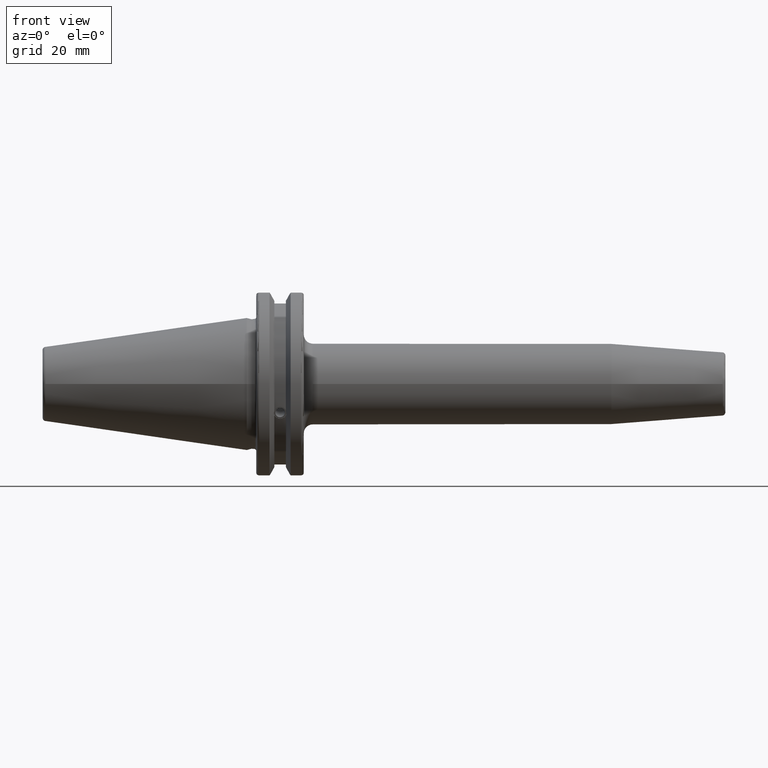
[diagram: clean part render]
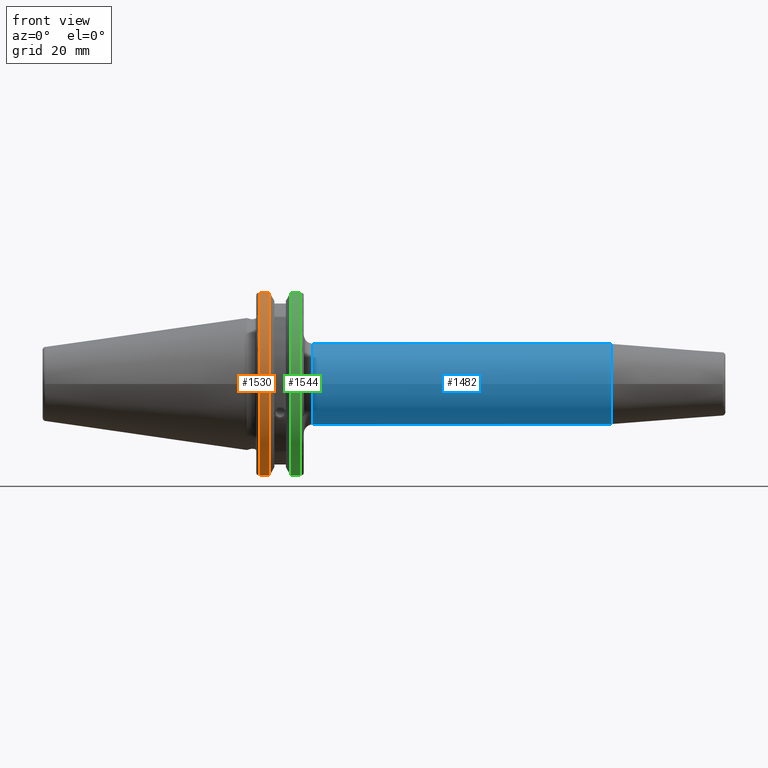
[diagram: same view with three faces highlighted in distinct colors, each labeled with its STEP entity id]
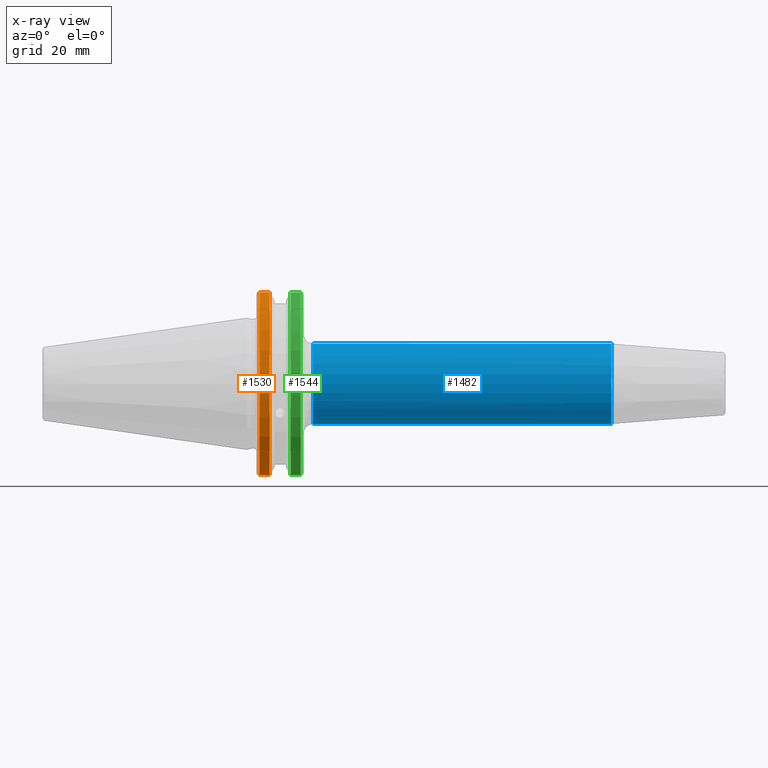
[diagram: x-ray of the same camera — body ghosted, the three highlighted faces saturated]
A machine part, front view with three faces highlighted in distinct colors.
The next image is the same camera in x-ray (body ghosted, the three faces saturated) — at least one of them is partly hidden behind the body in this view.
Their STEP definitions:

[orange] entity #1530 — the highlighted cylindrical surface (partial cylindrical patch) has radius 31.75 mm, axis along (1, 0, 0).
#100=CYLINDRICAL_SURFACE('',#1712,31.75);
#232=LINE('',#2863,#326);
#233=LINE('',#2869,#327);
#326=VECTOR('',#2087,10.);
#327=VECTOR('',#2090,10.);
#414=FACE_OUTER_BOUND('',#514,.T.);
#514=EDGE_LOOP('',(#1313,#1314,#1315,#1316));
#605=CIRCLE('',#1710,31.75);
#606=CIRCLE('',#1713,31.75);
#755=VERTEX_POINT('',#2842);
#756=VERTEX_POINT('',#2851);
#757=VERTEX_POINT('',#2862);
#758=VERTEX_POINT('',#2868);
#957=EDGE_CURVE('',#755,#756,#605,.T.);
#959=EDGE_CURVE('',#756,#757,#232,.T.);
#961=EDGE_CURVE('',#758,#755,#233,.T.);
#962=EDGE_CURVE('',#757,#758,#606,.T.);
#1313=ORIENTED_EDGE('',*,*,#957,.F.);
#1314=ORIENTED_EDGE('',*,*,#961,.F.);
#1315=ORIENTED_EDGE('',*,*,#962,.F.);
#1316=ORIENTED_EDGE('',*,*,#959,.F.);
#1530=ADVANCED_FACE('',(#414),#100,.T.);
#1710=AXIS2_PLACEMENT_3D('',#2852,#2083,#2084);
#1712=AXIS2_PLACEMENT_3D('',#2867,#2088,#2089);
#1713=AXIS2_PLACEMENT_3D('',#2870,#2091,#2092);
#2083=DIRECTION('center_axis',(-1.,0.,0.));
#2084=DIRECTION('ref_axis',(0.,-1.,1.60812264967664E-16));
#2087=DIRECTION('',(1.,0.,0.));
#2088=DIRECTION('center_axis',(1.,0.,0.));
#2089=DIRECTION('ref_axis',(0.,-1.,1.22464679914735E-16));
#2090=DIRECTION('',(-1.,0.,0.));
#2091=DIRECTION('center_axis',(1.,0.,0.));
#2092=DIRECTION('ref_axis',(0.,0.,-1.));
#2842=CARTESIAN_POINT('',(4.175,-8.67204822802685,-30.5427254764662));
#2851=CARTESIAN_POINT('',(4.175,-8.67204822802685,30.5427254764662));
#2852=CARTESIAN_POINT('Origin',(4.175,0.,0.));
#2862=CARTESIAN_POINT('',(7.60793323092436,-8.67204822802685,30.5427254764662));
#2863=CARTESIAN_POINT('',(5.39146661546218,-8.67204822802685,30.5427254764662));
#2867=CARTESIAN_POINT('Origin',(5.39146661546218,0.,0.));
#2868=CARTESIAN_POINT('',(7.60793323092436,-8.67204822802685,-30.5427254764662));
#2869=CARTESIAN_POINT('',(5.39146661546218,-8.67204822802685,-30.5427254764662));
#2870=CARTESIAN_POINT('Origin',(7.60793323092436,0.,0.));

[blue] entity #1482 — the highlighted cylindrical surface (bore or boss wall) has radius 13.5 mm, axis along (1, 0, 0).
#79=CYLINDRICAL_SURFACE('',#1602,13.5);
#162=LINE('',#2243,#256);
#256=VECTOR('',#1799,13.5);
#366=FACE_OUTER_BOUND('',#454,.T.);
#454=EDGE_LOOP('',(#1025,#1026,#1027,#1028,#1029));
#556=CIRCLE('',#1594,13.5);
#558=CIRCLE('',#1598,13.5);
#561=CIRCLE('',#1601,13.5);
#628=VERTEX_POINT('',#2228);
#630=VERTEX_POINT('',#2235);
#631=VERTEX_POINT('',#2236);
#782=EDGE_CURVE('',#628,#628,#556,.T.);
#784=EDGE_CURVE('',#630,#631,#558,.T.);
#787=EDGE_CURVE('',#631,#630,#561,.T.);
#788=EDGE_CURVE('',#628,#630,#162,.T.);
#1025=ORIENTED_EDGE('',*,*,#782,.F.);
#1026=ORIENTED_EDGE('',*,*,#788,.T.);
#1027=ORIENTED_EDGE('',*,*,#787,.F.);
#1028=ORIENTED_EDGE('',*,*,#784,.F.);
#1029=ORIENTED_EDGE('',*,*,#788,.F.);
#1482=ADVANCED_FACE('',(#366),#79,.T.);
#1594=AXIS2_PLACEMENT_3D('',#2230,#1781,#1782);
#1598=AXIS2_PLACEMENT_3D('',#2237,#1789,#1790);
#1601=AXIS2_PLACEMENT_3D('',#2241,#1795,#1796);
#1602=AXIS2_PLACEMENT_3D('',#2242,#1797,#1798);
#1781=DIRECTION('center_axis',(1.,0.,0.));
#1782=DIRECTION('ref_axis',(0.,0.,-1.));
#1789=DIRECTION('center_axis',(-1.,0.,0.));
#1790=DIRECTION('ref_axis',(0.,-1.,-1.22464679914735E-16));
#1795=DIRECTION('center_axis',(-1.,0.,0.));
#1796=DIRECTION('ref_axis',(0.,-1.,-1.22464679914735E-16));
#1797=DIRECTION('center_axis',(1.,0.,0.));
#1798=DIRECTION('ref_axis',(0.,1.,0.));
#1799=DIRECTION('',(-1.,0.,0.));
#2228=CARTESIAN_POINT('',(121.881385791476,-13.5,-1.65327317884893E-15));
#2230=CARTESIAN_POINT('Origin',(121.881385791476,0.,0.));
#2235=CARTESIAN_POINT('',(22.05,-13.5,-1.65327317884893E-15));
#2236=CARTESIAN_POINT('',(22.05,-1.65327317884893E-15,-13.5));
#2237=CARTESIAN_POINT('Origin',(22.05,0.,0.));
#2241=CARTESIAN_POINT('Origin',(22.05,0.,0.));
#2242=CARTESIAN_POINT('Origin',(70.4656928957379,0.,0.));
#2243=CARTESIAN_POINT('',(70.4656928957379,-13.5,-1.65327317884893E-15));

[green] entity #1544 — the highlighted cylindrical surface (partial cylindrical patch) has radius 31.75 mm, axis along (1, 0, 0).
#101=CYLINDRICAL_SURFACE('',#1734,31.75);
#246=LINE('',#2943,#340);
#247=LINE('',#2945,#341);
#340=VECTOR('',#2145,10.);
#341=VECTOR('',#2148,10.);
#428=FACE_OUTER_BOUND('',#529,.T.);
#529=EDGE_LOOP('',(#1379,#1380,#1381,#1382));
#578=CIRCLE('',#1646,31.75);
#604=CIRCLE('',#1706,31.75);
#681=VERTEX_POINT('',#2495);
#682=VERTEX_POINT('',#2499);
#746=VERTEX_POINT('',#2786);
#747=VERTEX_POINT('',#2795);
#851=EDGE_CURVE('',#682,#681,#578,.T.);
#941=EDGE_CURVE('',#746,#747,#604,.T.);
#987=EDGE_CURVE('',#747,#681,#246,.T.);
#988=EDGE_CURVE('',#682,#746,#247,.T.);
#1379=ORIENTED_EDGE('',*,*,#941,.F.);
#1380=ORIENTED_EDGE('',*,*,#988,.F.);
#1381=ORIENTED_EDGE('',*,*,#851,.T.);
#1382=ORIENTED_EDGE('',*,*,#987,.F.);
#1544=ADVANCED_FACE('',(#428),#101,.T.);
#1646=AXIS2_PLACEMENT_3D('',#2500,#1912,#1913);
#1706=AXIS2_PLACEMENT_3D('',#2796,#2066,#2067);
#1734=AXIS2_PLACEMENT_3D('',#2944,#2146,#2147);
#1912=DIRECTION('center_axis',(1.,0.,0.));
#1913=DIRECTION('ref_axis',(0.,0.,-1.));
#2066=DIRECTION('center_axis',(1.,0.,0.));
#2067=DIRECTION('ref_axis',(0.,-1.,1.60812264967664E-16));
#2145=DIRECTION('',(-1.,0.,0.));
#2146=DIRECTION('center_axis',(1.,0.,0.));
#2147=DIRECTION('ref_axis',(0.,-1.,1.22464679914735E-16));
#2148=DIRECTION('',(1.,0.,0.));
#2495=CARTESIAN_POINT('',(14.6602667690756,-8.67204822802686,-30.5427254764662));
#2499=CARTESIAN_POINT('',(14.6602667690756,-8.67204822802685,30.5427254764662));
#2500=CARTESIAN_POINT('Origin',(14.6602667690756,0.,0.));
#2786=CARTESIAN_POINT('',(18.05,-8.67204822802685,30.5427254764662));
#2795=CARTESIAN_POINT('',(18.05,-8.67204822802686,-30.5427254764662));
#2796=CARTESIAN_POINT('Origin',(18.05,0.,0.));
#2943=CARTESIAN_POINT('',(16.8551333845378,-8.67204822802686,-30.5427254764662));
#2944=CARTESIAN_POINT('Origin',(16.8551333845378,0.,0.));
#2945=CARTESIAN_POINT('',(16.8551333845378,-8.67204822802685,30.5427254764662));